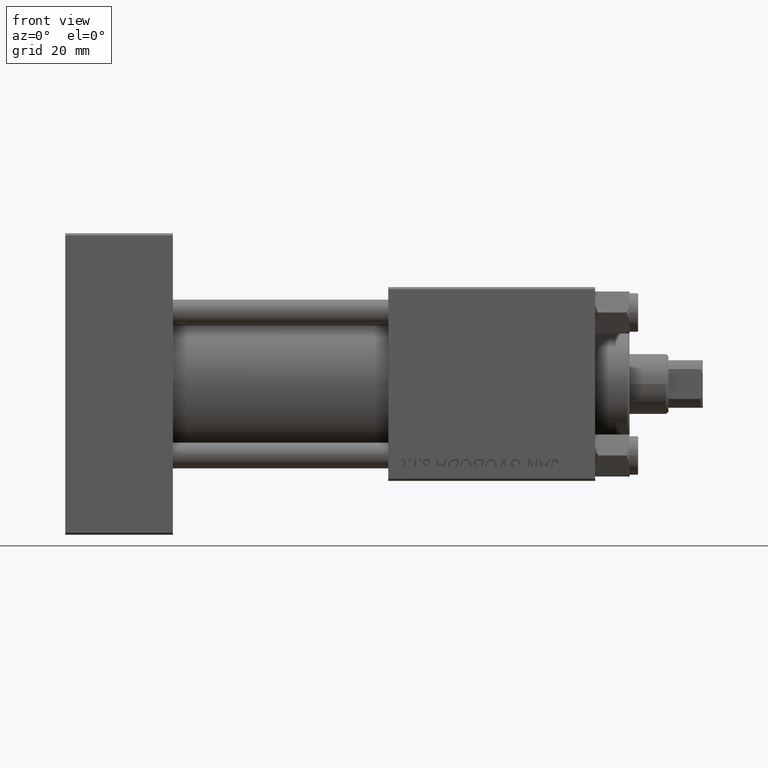
[diagram: clean part render]
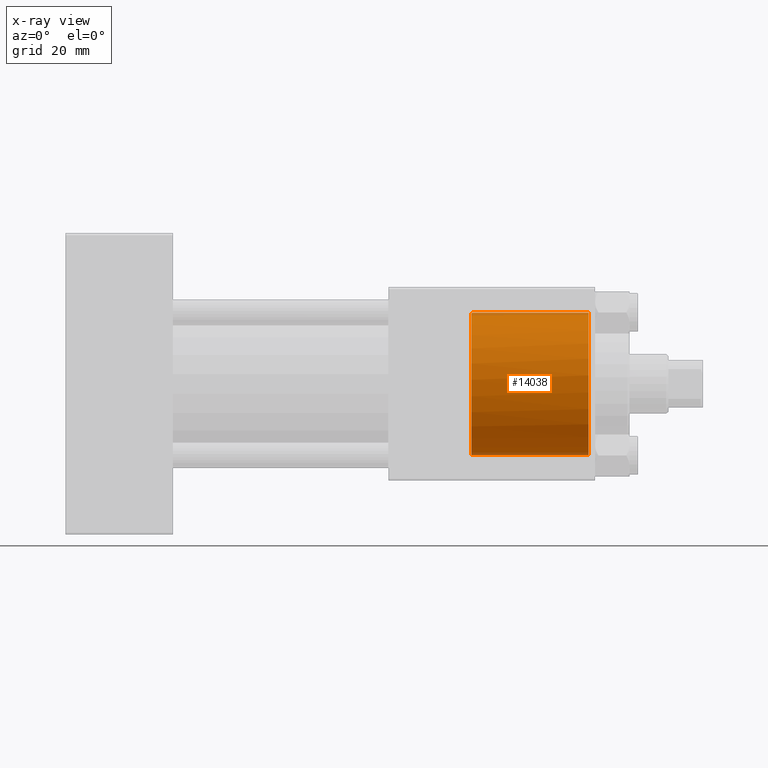
[diagram: x-ray — body ghosted, one internal face saturated and labeled with its STEP entity id]
A machine part, front view, then the same camera in x-ray: the body is ghosted and one INTERNAL B-rep face — a face not visible from any outside direction — is saturated and labeled: STEP entity #14038.
In plain terms, the highlighted cylindrical surface (partial cylindrical patch) has radius 16.5 mm, axis along (1, 0, 0).
Its self-contained STEP definition (entity closure, byte-faithful):
#500 = DIRECTION ( 'NONE',  ( 1.000000000000000000, -0.000000000000000000, -0.000000000000000000 ) ) ;
#1419 = CARTESIAN_POINT ( 'NONE',  ( 94.58000000000001251, 2.021162037415287302E-15, 16.50000000000000000 ) ) ;
#1544 = ORIENTED_EDGE ( 'NONE', *, *, #20044, .F. ) ;
#2123 = ORIENTED_EDGE ( 'NONE', *, *, #48449, .T. ) ;
#3525 = VERTEX_POINT ( 'NONE', #20905 ) ;
#3555 = CARTESIAN_POINT ( 'NONE',  ( 94.30000000000001137, 0.000000000000000000, 0.000000000000000000 ) ) ;
#4862 = CARTESIAN_POINT ( 'NONE',  ( 121.5000000000000000, 2.020667218593133100E-15, 16.50000000000000000 ) ) ;
#5636 = VERTEX_POINT ( 'NONE', #4862 ) ;
#6064 = CARTESIAN_POINT ( 'NONE',  ( 121.5000000000000000, 0.000000000000000000, 0.000000000000000000 ) ) ;
#6119 = B_SPLINE_CURVE_WITH_KNOTS ( 'NONE', 3,
 ( #31056, #47649, #9747, #1419 ),
 .UNSPECIFIED., .F., .F.,
 ( 4, 4 ),
 ( 0.000000000000000000, 0.001922561461481097408 ),
 .UNSPECIFIED. ) ;
#7090 = AXIS2_PLACEMENT_3D ( 'NONE', #40166, #20460, #43958 ) ;
#7636 = LINE ( 'NONE', #49057, #43061 ) ;
#8103 = CYLINDRICAL_SURFACE ( 'NONE', #36027, 16.50000000000000000 ) ;
#8925 = CARTESIAN_POINT ( 'NONE',  ( 94.58000000000001251, 2.021162037415287302E-15, 16.50000000000000000 ) ) ;
#9747 = CARTESIAN_POINT ( 'NONE',  ( 94.58000000000001251, -0.6476041116638471262, 16.50000000000000000 ) ) ;
#12663 = CIRCLE ( 'NONE', #40882, 16.50000000000000000 ) ;
#12779 = VERTEX_POINT ( 'NONE', #46519 ) ;
#13116 = VERTEX_POINT ( 'NONE', #36859 ) ;
#14038 = ADVANCED_FACE ( 'NONE', ( #46242 ), #8103, .F. ) ;
#14109 = ORIENTED_EDGE ( 'NONE', *, *, #18636, .T. ) ;
#15905 = DIRECTION ( 'NONE',  ( 0.000000000000000000, 0.000000000000000000, -1.000000000000000000 ) ) ;
#15944 = CIRCLE ( 'NONE', #7090, 16.50000000000000000 ) ;
#18636 = EDGE_CURVE ( 'NONE', #5636, #3525, #12663, .T. ) ;
#20044 = EDGE_CURVE ( 'NONE', #12779, #13116, #15944, .T. ) ;
#20460 = DIRECTION ( 'NONE',  ( 1.000000000000000000, 0.000000000000000000, 0.000000000000000000 ) ) ;
#20788 = VECTOR ( 'NONE', #49803, 1000.000000000000000 ) ;
#20905 = CARTESIAN_POINT ( 'NONE',  ( 121.5000000000000000, 0.000000000000000000, -16.50000000000000000 ) ) ;
#21937 = DIRECTION ( 'NONE',  ( 0.000000000000000000, 0.000000000000000000, 1.000000000000000000 ) ) ;
#23940 = ORIENTED_EDGE ( 'NONE', *, *, #25013, .T. ) ;
#25013 = EDGE_CURVE ( 'NONE', #12779, #34880, #6119, .T. ) ;
#26791 = CARTESIAN_POINT ( 'NONE',  ( 94.30000000000001137, 2.020667218593133100E-15, 16.50000000000000000 ) ) ;
#30830 = LINE ( 'NONE', #26791, #20788 ) ;
#31056 = CARTESIAN_POINT ( 'NONE',  ( 94.30000000000001137, -1.899052395275089067, 16.39035081991840670 ) ) ;
#32190 = ORIENTED_EDGE ( 'NONE', *, *, #36397, .F. ) ;
#34880 = VERTEX_POINT ( 'NONE', #8925 ) ;
#36027 = AXIS2_PLACEMENT_3D ( 'NONE', #3555, #500, #15905 ) ;
#36397 = EDGE_CURVE ( 'NONE', #13116, #3525, #7636, .T. ) ;
#36859 = CARTESIAN_POINT ( 'NONE',  ( 94.30000000000001137, 0.000000000000000000, -16.50000000000000000 ) ) ;
#40166 = CARTESIAN_POINT ( 'NONE',  ( 94.30000000000001137, 0.000000000000000000, 0.000000000000000000 ) ) ;
#40882 = AXIS2_PLACEMENT_3D ( 'NONE', #6064, #48487, #21937 ) ;
#43061 = VECTOR ( 'NONE', #49815, 1000.000000000000000 ) ;
#43366 = EDGE_LOOP ( 'NONE', ( #23940, #2123, #14109, #32190, #1544 ) ) ;
#43958 = DIRECTION ( 'NONE',  ( 0.000000000000000000, 0.000000000000000000, -1.000000000000000000 ) ) ;
#46242 = FACE_OUTER_BOUND ( 'NONE', #43366, .T. ) ;
#46519 = CARTESIAN_POINT ( 'NONE',  ( 94.30000000000001137, -1.899052395275089067, 16.39035081991840670 ) ) ;
#47649 = CARTESIAN_POINT ( 'NONE',  ( 94.48644965059658318, -1.280516118087126287, 16.46201693687124390 ) ) ;
#48449 = EDGE_CURVE ( 'NONE', #34880, #5636, #30830, .T. ) ;
#48487 = DIRECTION ( 'NONE',  ( 1.000000000000000000, 0.000000000000000000, 0.000000000000000000 ) ) ;
#49057 = CARTESIAN_POINT ( 'NONE',  ( 94.30000000000001137, 0.000000000000000000, -16.50000000000000000 ) ) ;
#49803 = DIRECTION ( 'NONE',  ( 1.000000000000000000, -0.000000000000000000, -0.000000000000000000 ) ) ;
#49815 = DIRECTION ( 'NONE',  ( 1.000000000000000000, -0.000000000000000000, -0.000000000000000000 ) ) ;